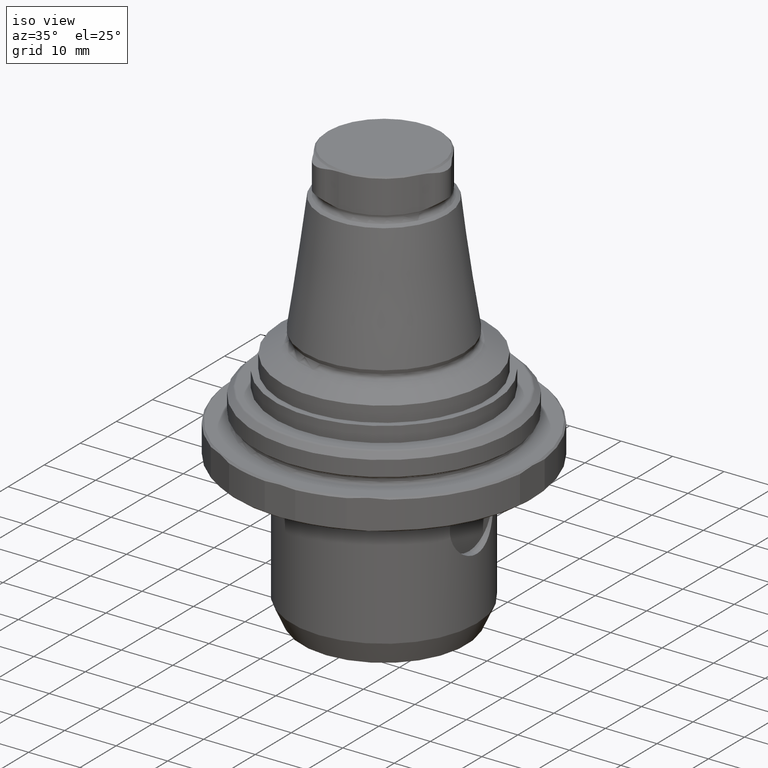
[diagram: clean part render]
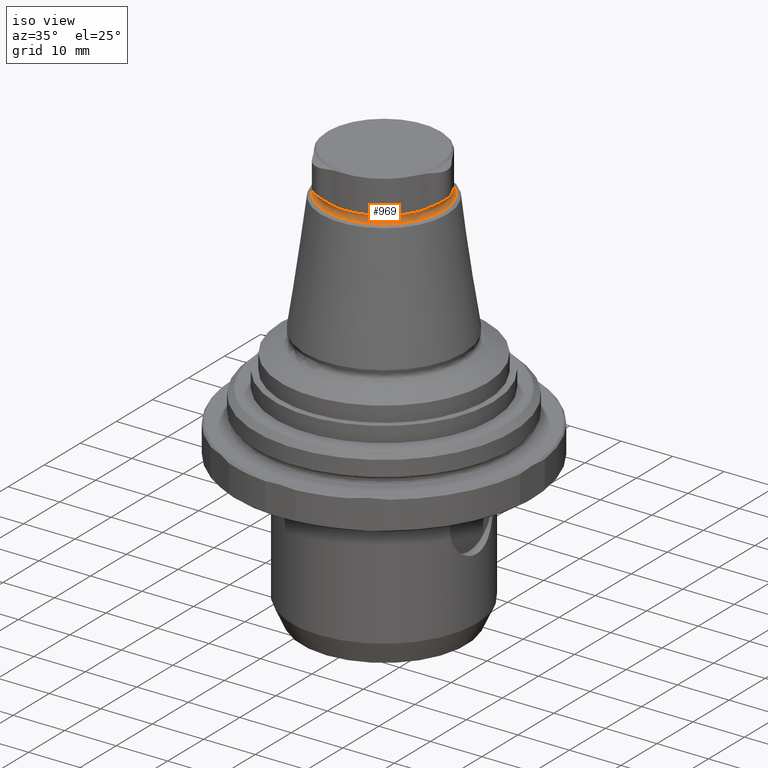
[diagram: same view with one face highlighted and labeled with its STEP entity id]
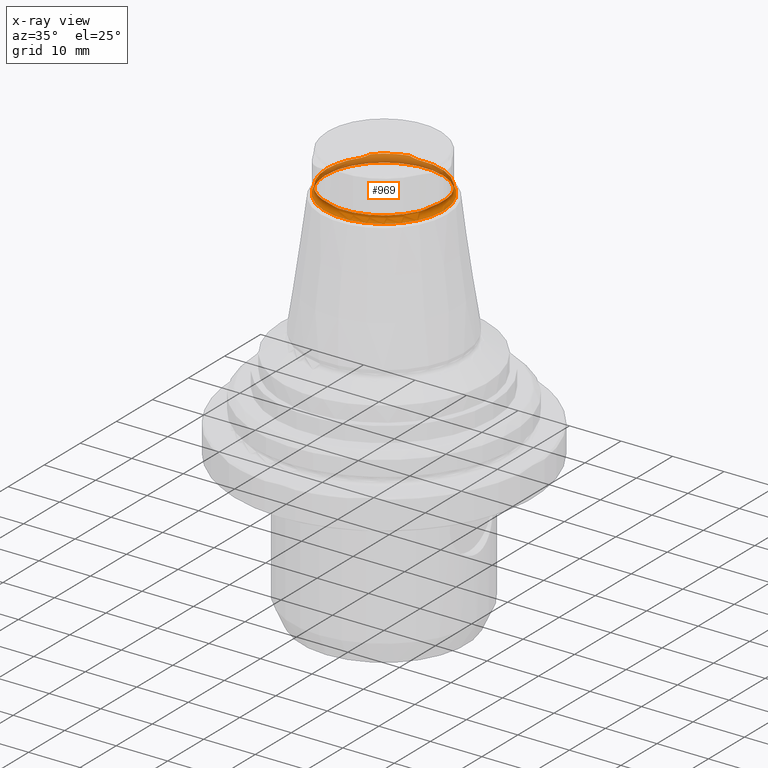
[diagram: x-ray of the same camera — body ghosted, the highlighted face saturated]
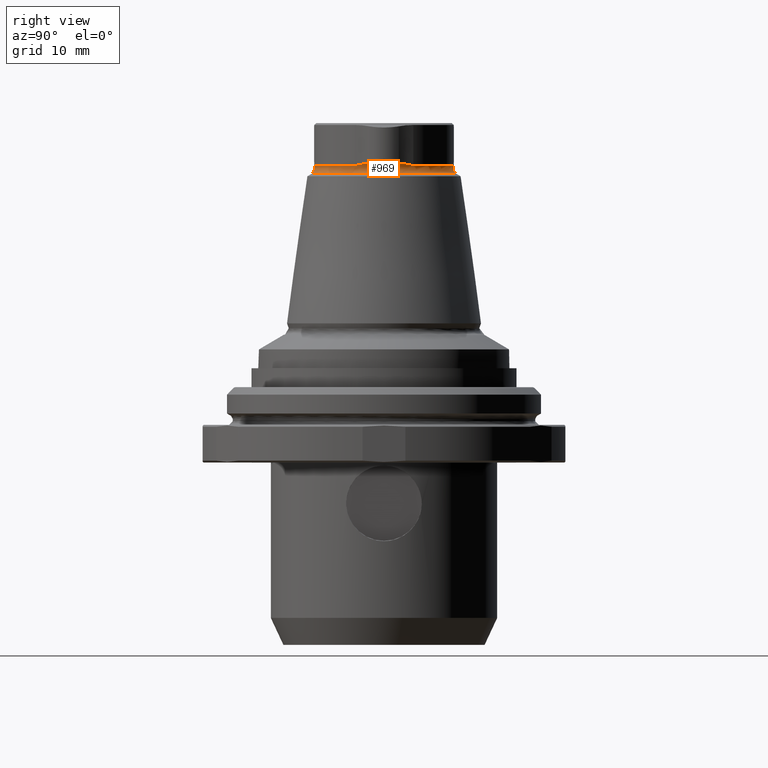
[diagram: same view with one face highlighted and labeled with its STEP entity id]
A machine part, iso view. The second image highlights one B-rep face of the part: STEP entity #969.
The next image is the same camera in x-ray: the body ghosted, the highlighted face saturated — about 39% of this face is hidden behind the body in this view.
A second angle (right view) of the same face is appended — the face is thin or edge-on in the first view.
In plain terms, the highlighted toroidal blend (fillet) surface has major radius 12.05 mm and minor (blend) radius 1 mm.
Its self-contained STEP definition (entity closure, byte-faithful):
#114=TOROIDAL_SURFACE('',#1096,12.05,1.);
#156=CIRCLE('',#1080,11.4072123903135);
#157=CIRCLE('',#1083,11.15);
#158=CIRCLE('',#1086,11.4072123903135);
#159=CIRCLE('',#1089,11.15);
#160=CIRCLE('',#1092,11.4072123903135);
#161=CIRCLE('',#1095,11.15);
#162=CIRCLE('',#1097,11.55);
#387=ORIENTED_EDGE('',*,*,#543,.F.);
#388=ORIENTED_EDGE('',*,*,#542,.T.);
#389=ORIENTED_EDGE('',*,*,#541,.T.);
#390=ORIENTED_EDGE('',*,*,#538,.T.);
#391=ORIENTED_EDGE('',*,*,#537,.T.);
#392=ORIENTED_EDGE('',*,*,#535,.T.);
#393=ORIENTED_EDGE('',*,*,#533,.T.);
#394=ORIENTED_EDGE('',*,*,#530,.T.);
#395=ORIENTED_EDGE('',*,*,#529,.T.);
#396=ORIENTED_EDGE('',*,*,#527,.T.);
#397=ORIENTED_EDGE('',*,*,#525,.T.);
#398=ORIENTED_EDGE('',*,*,#522,.T.);
#399=ORIENTED_EDGE('',*,*,#521,.T.);
#521=EDGE_CURVE('',#624,#625,#678,.T.);
#522=EDGE_CURVE('',#626,#624,#156,.T.);
#525=EDGE_CURVE('',#627,#626,#680,.T.);
#527=EDGE_CURVE('',#628,#627,#157,.T.);
#529=EDGE_CURVE('',#629,#628,#682,.T.);
#530=EDGE_CURVE('',#630,#629,#158,.T.);
#533=EDGE_CURVE('',#631,#630,#684,.T.);
#535=EDGE_CURVE('',#632,#631,#159,.T.);
#537=EDGE_CURVE('',#633,#632,#686,.T.);
#538=EDGE_CURVE('',#634,#633,#160,.T.);
#541=EDGE_CURVE('',#635,#634,#688,.T.);
#542=EDGE_CURVE('',#625,#635,#161,.T.);
#543=EDGE_CURVE('',#636,#636,#162,.T.);
#624=VERTEX_POINT('',#1737);
#625=VERTEX_POINT('',#1739);
#626=VERTEX_POINT('',#1746);
#627=VERTEX_POINT('',#1753);
#628=VERTEX_POINT('',#1760);
#629=VERTEX_POINT('',#1767);
#630=VERTEX_POINT('',#1774);
#631=VERTEX_POINT('',#1781);
#632=VERTEX_POINT('',#1788);
#633=VERTEX_POINT('',#1795);
#634=VERTEX_POINT('',#1802);
#635=VERTEX_POINT('',#1809);
#636=VERTEX_POINT('',#1818);
#678=B_SPLINE_CURVE_WITH_KNOTS('',3,(#1740,#1741,#1742,#1743),
 .UNSPECIFIED.,.F.,.F.,(4,4),(8.50890922870744E-7,0.00179869095250344),
 .UNSPECIFIED.);
#680=B_SPLINE_CURVE_WITH_KNOTS('',3,(#1754,#1755,#1756,#1757),
 .UNSPECIFIED.,.F.,.F.,(4,4),(1.97014138844216E-7,0.00179803707563465),
 .UNSPECIFIED.);
#682=B_SPLINE_CURVE_WITH_KNOTS('',3,(#1768,#1769,#1770,#1771),
 .UNSPECIFIED.,.F.,.F.,(4,4),(8.50891091952298E-7,0.00179869095262926),
 .UNSPECIFIED.);
#684=B_SPLINE_CURVE_WITH_KNOTS('',3,(#1782,#1783,#1784,#1785),
 .UNSPECIFIED.,.F.,.F.,(4,4),(2.15734678292797E-7,0.00179805579621476),
 .UNSPECIFIED.);
#686=B_SPLINE_CURVE_WITH_KNOTS('',3,(#1796,#1797,#1798,#1799),
 .UNSPECIFIED.,.F.,.F.,(4,4),(8.5089122328457E-7,0.00179869095271709),
 .UNSPECIFIED.);
#688=B_SPLINE_CURVE_WITH_KNOTS('',3,(#1810,#1811,#1812,#1813),
 .UNSPECIFIED.,.F.,.F.,(4,4),(2.40605450742352E-7,0.00179808066703067),
 .UNSPECIFIED.);
#760=EDGE_LOOP('',(#387));
#761=EDGE_LOOP('',(#388,#389,#390,#391,#392,#393,#394,#395,#396,#397,#398,
#399));
#860=FACE_BOUND('',#760,.T.);
#861=FACE_BOUND('',#761,.T.);
#969=ADVANCED_FACE('',(#860,#861),#114,.F.);
#1080=AXIS2_PLACEMENT_3D('',#1745,#1312,#1313);
#1083=AXIS2_PLACEMENT_3D('',#1761,#1320,#1321);
#1086=AXIS2_PLACEMENT_3D('',#1773,#1326,#1327);
#1089=AXIS2_PLACEMENT_3D('',#1789,#1334,#1335);
#1092=AXIS2_PLACEMENT_3D('',#1801,#1340,#1341);
#1095=AXIS2_PLACEMENT_3D('',#1815,#1347,#1348);
#1096=AXIS2_PLACEMENT_3D('',#1816,#1349,#1350);
#1097=AXIS2_PLACEMENT_3D('',#1817,#1351,#1352);
#1312=DIRECTION('',(1.27319154200133E-16,-7.79579225983867E-33,-1.));
#1313=DIRECTION('',(-1.,6.12303176911189E-17,-1.27319154200133E-16));
#1320=DIRECTION('',(1.27319154200133E-16,-7.79579225983867E-33,-1.));
#1321=DIRECTION('',(-1.,6.12303176911189E-17,-1.27319154200133E-16));
#1326=DIRECTION('',(1.27319154200133E-16,-7.79579225983867E-33,-1.));
#1327=DIRECTION('',(-1.,6.12303176911189E-17,-1.27319154200133E-16));
#1334=DIRECTION('',(1.27319154200133E-16,-7.79579225983867E-33,-1.));
#1335=DIRECTION('',(-1.,6.12303176911189E-17,-1.27319154200133E-16));
#1340=DIRECTION('',(1.27319154200133E-16,-7.79579225983867E-33,-1.));
#1341=DIRECTION('',(-1.,6.12303176911189E-17,-1.27319154200133E-16));
#1347=DIRECTION('',(1.27319154200133E-16,-7.79579225983867E-33,-1.));
#1348=DIRECTION('',(-1.,6.12303176911189E-17,-1.27319154200133E-16));
#1349=DIRECTION('',(1.27319154200133E-16,-7.79579225983867E-33,-1.));
#1350=DIRECTION('',(-1.,6.12303176911189E-17,-1.27319154200133E-16));
#1351=DIRECTION('',(1.27319154200133E-16,-7.79579225983867E-33,-1.));
#1352=DIRECTION('',(-1.,6.12303176911189E-17,-1.27319154200133E-16));
#1737=CARTESIAN_POINT('',(-8.16631301184022,-7.96466109199695,40.5971607155419));
#1739=CARTESIAN_POINT('',(-9.08956477504308,-6.45773274457035,40.2670061667781));
#1740=CARTESIAN_POINT('',(-8.16631301184022,-7.96466109199695,40.5971607155419));
#1741=CARTESIAN_POINT('',(-8.43716773628232,-7.44650007144285,40.4562890177724));
#1742=CARTESIAN_POINT('',(-8.73565666774484,-6.95587517209814,40.267006166778));
#1743=CARTESIAN_POINT('',(-9.0895647750435,-6.45773274457063,40.267006166778));
#1745=CARTESIAN_POINT('',(8.79381948262273E-16,-5.3844836063934E-32,40.5971607155419));
#1746=CARTESIAN_POINT('',(-2.81444233228351,-11.0545650695073,40.5971607155419));
#1753=CARTESIAN_POINT('',(-1.04777822012702,-11.100660376817,40.267006166777));
#1754=CARTESIAN_POINT('',(-1.04777822012689,-11.100660376817,40.2670061667777));
#1755=CARTESIAN_POINT('',(-1.65613685629354,-11.043238123783,40.2670061667776));
#1756=CARTESIAN_POINT('',(-2.2302745665295,-11.0300516398724,40.4562890668505));
#1757=CARTESIAN_POINT('',(-2.81444233228351,-11.0545650695073,40.5971607155419));
#1760=CARTESIAN_POINT('',(10.1373429951703,-4.64292763224633,40.2670061667779));
#1761=CARTESIAN_POINT('',(1.67922634330326E-15,-1.02819562475755E-31,40.267006166777));
#1767=CARTESIAN_POINT('',(10.9807553441231,-3.08990397751001,40.5971607155419));
#1768=CARTESIAN_POINT('',(10.9807553441231,-3.08990397751001,40.5971607155419));
#1769=CARTESIAN_POINT('',(10.6674421615715,-3.58355146176541,40.4562890457738));
#1770=CARTESIAN_POINT('',(10.3917930782019,-4.0873627018511,40.2670061667778));
#1771=CARTESIAN_POINT('',(10.1373429951705,-4.6429276322464,40.2670061667778));
#1773=CARTESIAN_POINT('',(8.79381948262273E-16,-5.3844836063934E-32,40.5971607155419));
#1774=CARTESIAN_POINT('',(10.9807553441229,3.08990397751094,40.5971607155419));
#1781=CARTESIAN_POINT('',(10.1373429951706,4.64292763224664,40.2670061667782));
#1782=CARTESIAN_POINT('',(10.1373429951706,4.64292763224665,40.2670061667782));
#1783=CARTESIAN_POINT('',(10.391793078202,4.08736270185151,40.2670061667782));
#1784=CARTESIAN_POINT('',(10.6674421615714,3.58355146176609,40.4562890457739));
#1785=CARTESIAN_POINT('',(10.9807553441229,3.08990397751093,40.5971607155419));
#1788=CARTESIAN_POINT('',(-1.04777822012694,11.1006603768167,40.2670061667788));
#1789=CARTESIAN_POINT('',(1.67922634330326E-15,-1.02819562475755E-31,40.267006166777));
#1795=CARTESIAN_POINT('',(-2.81444233228175,11.0545650695078,40.5971607155419));
#1796=CARTESIAN_POINT('',(-2.81444233228175,11.0545650695078,40.5971607155419));
#1797=CARTESIAN_POINT('',(-2.23027456652832,11.0300516398729,40.4562890668508));
#1798=CARTESIAN_POINT('',(-1.65613685629275,11.0432381237836,40.2670061667787));
#1799=CARTESIAN_POINT('',(-1.04777822012697,11.1006603768175,40.2670061667787));
#1801=CARTESIAN_POINT('',(8.79381948262273E-16,-5.3844836063934E-32,40.5971607155419));
#1802=CARTESIAN_POINT('',(-8.16631301184081,7.96466109199635,40.5971607155419));
#1809=CARTESIAN_POINT('',(-9.08956477504374,6.45773274457082,40.267006166777));
#1810=CARTESIAN_POINT('',(-9.08956477504392,6.45773274457056,40.2670061667786));
#1811=CARTESIAN_POINT('',(-8.73565666774528,6.95587517209798,40.2670061667786));
#1812=CARTESIAN_POINT('',(-8.43716773628286,7.44650007144248,40.4562890177725));
#1813=CARTESIAN_POINT('',(-8.16631301184081,7.96466109199635,40.5971607155419));
#1815=CARTESIAN_POINT('',(1.67922634330326E-15,-1.02819562475755E-31,40.267006166777));
#1816=CARTESIAN_POINT('',(1.73472347597681E-15,-1.06217669540302E-31,39.8311162724229));
#1817=CARTESIAN_POINT('',(1.08717570076556E-15,-6.65681135439398E-32,38.9650908686385));
#1818=CARTESIAN_POINT('',(-11.55,7.07210169332423E-16,38.9650908686385));